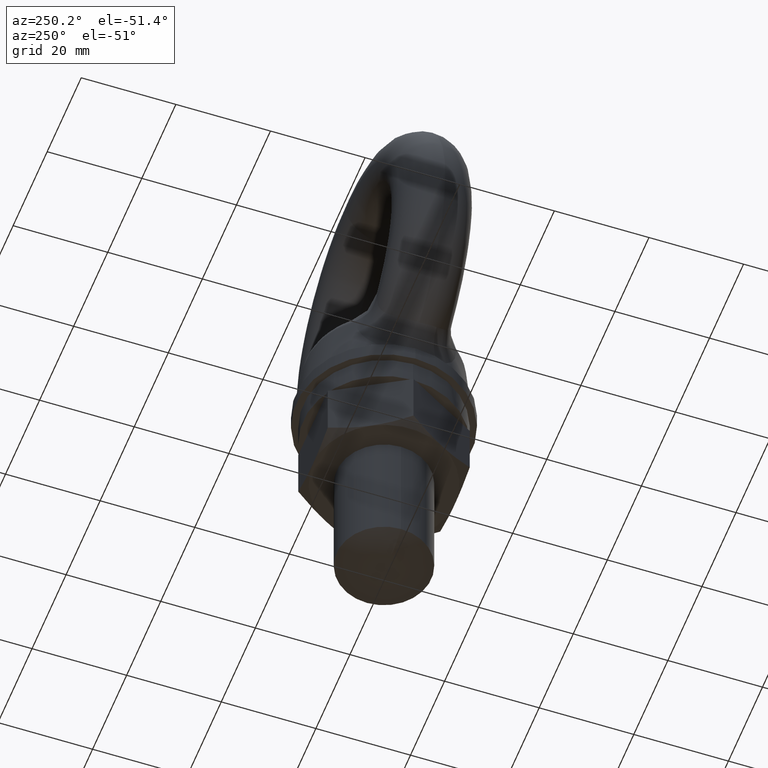
[diagram: clean part render]
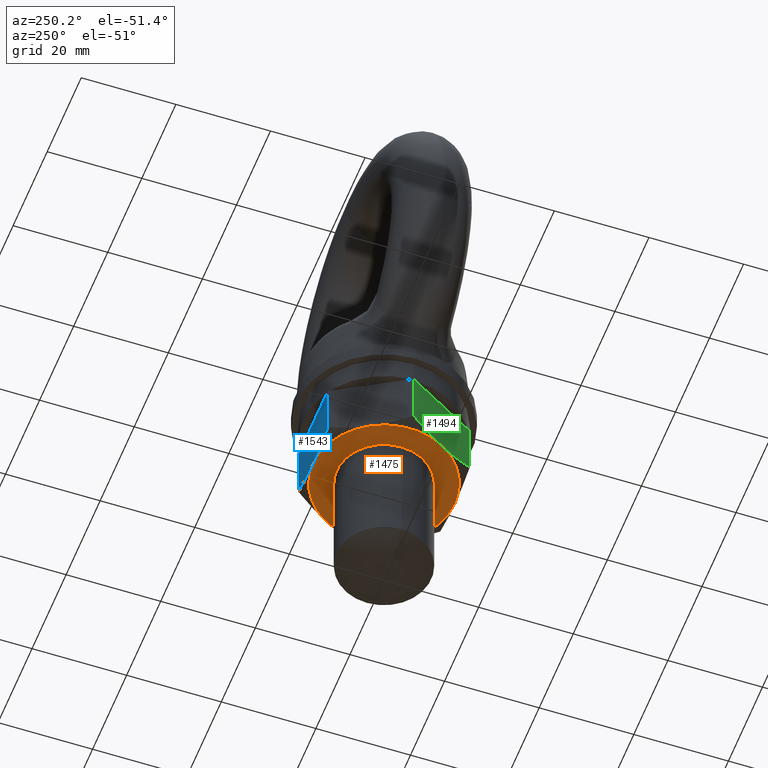
[diagram: same view with three faces highlighted in distinct colors, each labeled with its STEP entity id]
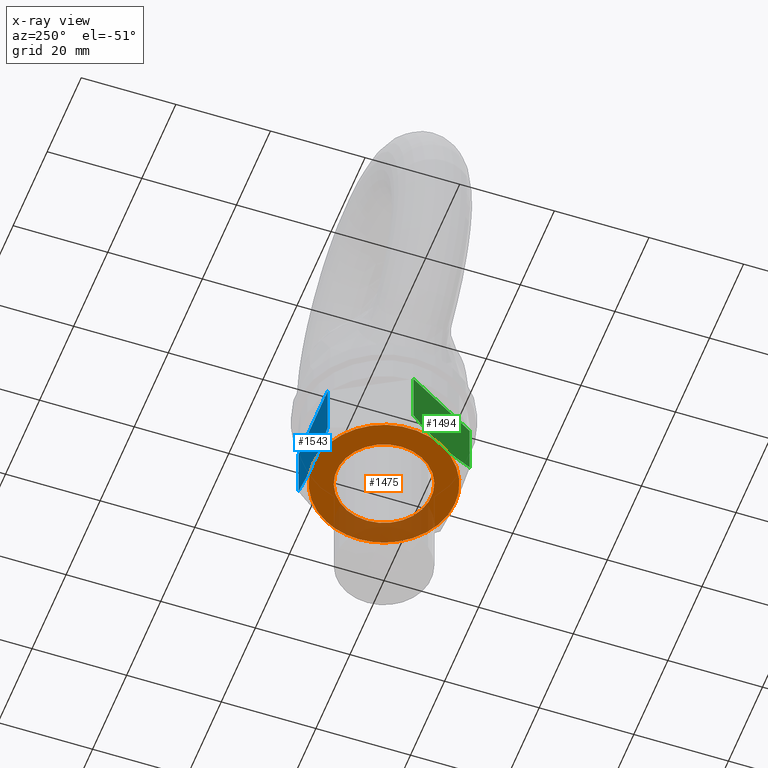
[diagram: x-ray of the same camera — body ghosted, the three highlighted faces saturated]
A machine part, auxiliary view with three faces highlighted in distinct colors.
The next image is the same camera in x-ray (body ghosted, the three faces saturated) — at least one of them is partly hidden behind the body in this view.
Their STEP definitions:

[orange] entity #1475 — the highlighted planar face has unit normal (0, 0, 1).
#1451 = EDGE_CURVE ( 'NONE', #1452, #1459, #2021, .T. ) ;
#1452 = VERTEX_POINT ( 'NONE', #2338 ) ;
#1459 = VERTEX_POINT ( 'NONE', #2146 ) ;
#1475 = ADVANCED_FACE ( 'NONE', ( #2124, #2123 ), #2219, .F. ) ;
#1476 = EDGE_LOOP ( 'NONE', ( #1597, #1599 ) ) ;
#1484 = VERTEX_POINT ( 'NONE', #2191 ) ;
#1492 = VERTEX_POINT ( 'NONE', #2272 ) ;
#1496 = VERTEX_POINT ( 'NONE', #2261 ) ;
#1499 = EDGE_CURVE ( 'NONE', #1496, #1492, #2260, .T. ) ;
#1514 = VERTEX_POINT ( 'NONE', #2290 ) ;
#1520 = VERTEX_POINT ( 'NONE', #2320 ) ;
#1535 = VERTEX_POINT ( 'NONE', #2164 ) ;
#1547 = VERTEX_POINT ( 'NONE', #2340 ) ;
#1597 = ORIENTED_EDGE ( 'NONE', *, *, #1598, .F. ) ;
#1598 = EDGE_CURVE ( 'NONE', #1492, #1496, #3172, .T. ) ;
#1599 = ORIENTED_EDGE ( 'NONE', *, *, #1499, .F. ) ;
#1600 = EDGE_LOOP ( 'NONE', ( #1601, #1603, #1605, #1667, #1669, #1671, #1673 ) ) ;
#1601 = ORIENTED_EDGE ( 'NONE', *, *, #1602, .F. ) ;
#1602 = EDGE_CURVE ( 'NONE', #1520, #1547, #3222, .T. ) ;
#1603 = ORIENTED_EDGE ( 'NONE', *, *, #1604, .F. ) ;
#1604 = EDGE_CURVE ( 'NONE', #1459, #1520, #3215, .T. ) ;
#1605 = ORIENTED_EDGE ( 'NONE', *, *, #1451, .F. ) ;
#1667 = ORIENTED_EDGE ( 'NONE', *, *, #1668, .F. ) ;
#1668 = EDGE_CURVE ( 'NONE', #1514, #1452, #3314, .T. ) ;
#1669 = ORIENTED_EDGE ( 'NONE', *, *, #1670, .F. ) ;
#1670 = EDGE_CURVE ( 'NONE', #1484, #1514, #3309, .T. ) ;
#1671 = ORIENTED_EDGE ( 'NONE', *, *, #1672, .F. ) ;
#1672 = EDGE_CURVE ( 'NONE', #1535, #1484, #3304, .T. ) ;
#1673 = ORIENTED_EDGE ( 'NONE', *, *, #1674, .T. ) ;
#1674 = EDGE_CURVE ( 'NONE', #1535, #1547, #3299, .T. ) ;
#2014 = DIRECTION ( 'NONE',  ( 1.000000000000000000, 0.0000000000000000000, 0.0000000000000000000 ) ) ;
#2015 = DIRECTION ( 'NONE',  ( 0.0000000000000000000, 0.0000000000000000000, 1.000000000000000000 ) ) ;
#2016 = CARTESIAN_POINT ( 'NONE',  ( 0.0000000000000000000, 0.0000000000000000000, -56.30000300000009600 ) ) ;
#2017 = AXIS2_PLACEMENT_3D ( 'NONE', #2016, #2015, #2014 ) ;
#2021 = CIRCLE ( 'NONE', #2017, 15.00000000000000000 ) ;
#2123 = FACE_OUTER_BOUND ( 'NONE', #1600, .T. ) ;
#2124 = FACE_BOUND ( 'NONE', #1476, .T. ) ;
#2146 = CARTESIAN_POINT ( 'NONE',  ( 15.00000000000000000, 0.0000000000000000000, -56.30000300000009600 ) ) ;
#2164 = CARTESIAN_POINT ( 'NONE',  ( -12.99038102838325900, 7.500000816864069700, -56.30000300000009600 ) ) ;
#2191 = CARTESIAN_POINT ( 'NONE',  ( -12.99038069595821900, -7.500000624938359700, -56.30000300000009600 ) ) ;
#2207 = DIRECTION ( 'NONE',  ( 1.000000000000000000, 0.0000000000000000000, 0.0000000000000000000 ) ) ;
#2208 = DIRECTION ( 'NONE',  ( 0.0000000000000000000, 0.0000000000000000000, 1.000000000000000000 ) ) ;
#2209 = CARTESIAN_POINT ( 'NONE',  ( 0.0000000000000000000, 0.0000000000000000000, -56.30000300000009600 ) ) ;
#2210 = AXIS2_PLACEMENT_3D ( 'NONE', #2209, #2208, #2207 ) ;
#2219 = PLANE ( 'NONE',  #2210 ) ;
#2256 = DIRECTION ( 'NONE',  ( 1.000000000000000000, 0.0000000000000000000, 0.0000000000000000000 ) ) ;
#2257 = DIRECTION ( 'NONE',  ( 0.0000000000000000000, 0.0000000000000000000, -1.000000000000000000 ) ) ;
#2258 = CARTESIAN_POINT ( 'NONE',  ( 0.0000000000000000000, 0.0000000000000000000, -56.30000300000000400 ) ) ;
#2259 = AXIS2_PLACEMENT_3D ( 'NONE', #2258, #2257, #2256 ) ;
#2260 = CIRCLE ( 'NONE', #2259, 10.00000000000000000 ) ;
#2261 = CARTESIAN_POINT ( 'NONE',  ( 10.00000000000000000, 1.224606353822377300E-015, -56.30000300000000400 ) ) ;
#2272 = CARTESIAN_POINT ( 'NONE',  ( -10.00000000000000000, 0.0000000000000000000, -56.30000300000000400 ) ) ;
#2290 = CARTESIAN_POINT ( 'NONE',  ( 0.0000000000000000000, -15.00000000000000000, -56.30000300000009600 ) ) ;
#2320 = CARTESIAN_POINT ( 'NONE',  ( 12.99038069595821900, 7.500000624938359700, -56.30000300000009600 ) ) ;
#2338 = CARTESIAN_POINT ( 'NONE',  ( 12.99038069595821900, -7.500000624938359700, -56.30000300000009600 ) ) ;
#2340 = CARTESIAN_POINT ( 'NONE',  ( 0.0000000000000000000, 15.00000000000000000, -56.30000300000009600 ) ) ;
#3170 = CARTESIAN_POINT ( 'NONE',  ( 0.0000000000000000000, 0.0000000000000000000, -56.30000300000000400 ) ) ;
#3171 = AXIS2_PLACEMENT_3D ( 'NONE', #3170, #3217, #3216 ) ;
#3172 = CIRCLE ( 'NONE', #3171, 10.00000000000000000 ) ;
#3183 = DIRECTION ( 'NONE',  ( 1.000000000000000000, 0.0000000000000000000, 0.0000000000000000000 ) ) ;
#3184 = DIRECTION ( 'NONE',  ( 0.0000000000000000000, 0.0000000000000000000, 1.000000000000000000 ) ) ;
#3185 = CARTESIAN_POINT ( 'NONE',  ( 0.0000000000000000000, 0.0000000000000000000, -56.30000300000009600 ) ) ;
#3186 = AXIS2_PLACEMENT_3D ( 'NONE', #3185, #3184, #3183 ) ;
#3215 = CIRCLE ( 'NONE', #3186, 15.00000000000000000 ) ;
#3216 = DIRECTION ( 'NONE',  ( 1.000000000000000000, 0.0000000000000000000, 0.0000000000000000000 ) ) ;
#3217 = DIRECTION ( 'NONE',  ( 0.0000000000000000000, 0.0000000000000000000, -1.000000000000000000 ) ) ;
#3218 = DIRECTION ( 'NONE',  ( 1.000000000000000000, 0.0000000000000000000, 0.0000000000000000000 ) ) ;
#3219 = DIRECTION ( 'NONE',  ( 0.0000000000000000000, 0.0000000000000000000, 1.000000000000000000 ) ) ;
#3220 = CARTESIAN_POINT ( 'NONE',  ( 0.0000000000000000000, 0.0000000000000000000, -56.30000300000009600 ) ) ;
#3221 = AXIS2_PLACEMENT_3D ( 'NONE', #3220, #3219, #3218 ) ;
#3222 = CIRCLE ( 'NONE', #3221, 15.00000000000000000 ) ;
#3295 = DIRECTION ( 'NONE',  ( -1.000000000000000000, 0.0000000000000000000, 0.0000000000000000000 ) ) ;
#3296 = DIRECTION ( 'NONE',  ( 0.0000000000000000000, 0.0000000000000000000, -1.000000000000000000 ) ) ;
#3297 = CARTESIAN_POINT ( 'NONE',  ( 0.0000000000000000000, 0.0000000000000000000, -56.30000300000009600 ) ) ;
#3298 = AXIS2_PLACEMENT_3D ( 'NONE', #3297, #3296, #3295 ) ;
#3299 = CIRCLE ( 'NONE', #3298, 15.00000000000000000 ) ;
#3300 = DIRECTION ( 'NONE',  ( 1.000000000000000000, 0.0000000000000000000, 0.0000000000000000000 ) ) ;
#3301 = DIRECTION ( 'NONE',  ( 0.0000000000000000000, 0.0000000000000000000, 1.000000000000000000 ) ) ;
#3302 = CARTESIAN_POINT ( 'NONE',  ( 0.0000000000000000000, 0.0000000000000000000, -56.30000300000009600 ) ) ;
#3303 = AXIS2_PLACEMENT_3D ( 'NONE', #3302, #3301, #3300 ) ;
#3304 = CIRCLE ( 'NONE', #3303, 15.00000000000000000 ) ;
#3305 = DIRECTION ( 'NONE',  ( 1.000000000000000000, 0.0000000000000000000, 0.0000000000000000000 ) ) ;
#3306 = DIRECTION ( 'NONE',  ( 0.0000000000000000000, 0.0000000000000000000, 1.000000000000000000 ) ) ;
#3307 = CARTESIAN_POINT ( 'NONE',  ( 0.0000000000000000000, 0.0000000000000000000, -56.30000300000009600 ) ) ;
#3308 = AXIS2_PLACEMENT_3D ( 'NONE', #3307, #3306, #3305 ) ;
#3309 = CIRCLE ( 'NONE', #3308, 15.00000000000000000 ) ;
#3310 = DIRECTION ( 'NONE',  ( 1.000000000000000000, 0.0000000000000000000, 0.0000000000000000000 ) ) ;
#3311 = DIRECTION ( 'NONE',  ( 0.0000000000000000000, 0.0000000000000000000, 1.000000000000000000 ) ) ;
#3312 = CARTESIAN_POINT ( 'NONE',  ( 0.0000000000000000000, 0.0000000000000000000, -56.30000300000009600 ) ) ;
#3313 = AXIS2_PLACEMENT_3D ( 'NONE', #3312, #3311, #3310 ) ;
#3314 = CIRCLE ( 'NONE', #3313, 15.00000000000000000 ) ;

[blue] entity #1543 — the highlighted planar face has unit normal (0, -1, 0).
#1442 = EDGE_CURVE ( 'NONE', #1443, #1546, #1844, .T. ) ;
#1443 = VERTEX_POINT ( 'NONE', #1840 ) ;
#1444 = ORIENTED_EDGE ( 'NONE', *, *, #1515, .F. ) ;
#1469 = VERTEX_POINT ( 'NONE', #2129 ) ;
#1515 = EDGE_CURVE ( 'NONE', #1523, #1443, #2289, .T. ) ;
#1522 = EDGE_CURVE ( 'NONE', #1523, #1469, #2319, .T. ) ;
#1523 = VERTEX_POINT ( 'NONE', #2188 ) ;
#1527 = EDGE_LOOP ( 'NONE', ( #1544, #1548, #1444, #1530, #1531 ) ) ;
#1530 = ORIENTED_EDGE ( 'NONE', *, *, #1522, .T. ) ;
#1531 = ORIENTED_EDGE ( 'NONE', *, *, #1532, .F. ) ;
#1532 = EDGE_CURVE ( 'NONE', #1547, #1469, #2177, .T. ) ;
#1543 = ADVANCED_FACE ( 'NONE', ( #2235 ), #2232, .F. ) ;
#1544 = ORIENTED_EDGE ( 'NONE', *, *, #1545, .F. ) ;
#1545 = EDGE_CURVE ( 'NONE', #1546, #1547, #2591, .T. ) ;
#1546 = VERTEX_POINT ( 'NONE', #2563 ) ;
#1547 = VERTEX_POINT ( 'NONE', #2340 ) ;
#1548 = ORIENTED_EDGE ( 'NONE', *, *, #1442, .F. ) ;
#1840 = CARTESIAN_POINT ( 'NONE',  ( -8.660253999999998300, 15.00000000000000000, -43.29999900000014900 ) ) ;
#1841 = DIRECTION ( 'NONE',  ( 0.0000000000000000000, 0.0000000000000000000, -1.000000000000000000 ) ) ;
#1842 = VECTOR ( 'NONE', #1841, 1000.000000000000000 ) ;
#1843 = CARTESIAN_POINT ( 'NONE',  ( -8.660253999999998300, 15.00000000000000000, 943.6999969999999400 ) ) ;
#1844 = LINE ( 'NONE', #1843, #1842 ) ;
#2129 = CARTESIAN_POINT ( 'NONE',  ( 8.660253999999998300, 15.00000000000000000, -54.96025704876919300 ) ) ;
#2168 = CARTESIAN_POINT ( 'NONE',  ( 8.660253999999998300, 15.00000000000000000, -54.96025704876919300 ) ) ;
#2169 = CARTESIAN_POINT ( 'NONE',  ( 7.259722152322110500, 15.00000000000000200, -55.36455576707688700 ) ) ;
#2170 = CARTESIAN_POINT ( 'NONE',  ( 5.841206664520824700, 15.00000000000000000, -55.70111161903209100 ) ) ;
#2171 = CARTESIAN_POINT ( 'NONE',  ( 3.672874707161987400, 15.00000000000000000, -56.05316407389835800 ) ) ;
#2172 = CARTESIAN_POINT ( 'NONE',  ( 2.943301964262826900, 14.99999999999999800, -56.14491709987432000 ) ) ;
#2173 = CARTESIAN_POINT ( 'NONE',  ( 1.468331681756600600, 15.00000000000000400, -56.26881246783327800 ) ) ;
#2174 = CARTESIAN_POINT ( 'NONE',  ( 0.7327011086299587400, 15.00000000000000000, -56.30000300000008900 ) ) ;
#2175 = CARTESIAN_POINT ( 'NONE',  ( 0.0000000000000000000, 15.00000000000000000, -56.30000300000009600 ) ) ;
#2177 = B_SPLINE_CURVE_WITH_KNOTS ( 'NONE', 3,
 ( #2175, #2174, #2173, #2172, #2171, #2170, #2169, #2168 ),
 .UNSPECIFIED., .F., .F.,
 ( 4, 2, 2, 4 ),
 ( 0.02454570066717594000, 0.02673827994360973900, 0.02893085922004353500, 0.03331601777291113400 ),
 .UNSPECIFIED. ) ;
#2188 = CARTESIAN_POINT ( 'NONE',  ( 8.660253999999998300, 15.00000000000000000, -43.29999900000014900 ) ) ;
#2189 = DIRECTION ( 'NONE',  ( 0.0000000000000000000, 0.0000000000000000000, -1.000000000000000000 ) ) ;
#2220 = DIRECTION ( 'NONE',  ( 0.0000000000000000000, 0.0000000000000000000, -1.000000000000000000 ) ) ;
#2221 = DIRECTION ( 'NONE',  ( 0.0000000000000000000, -1.000000000000000000, 0.0000000000000000000 ) ) ;
#2222 = CARTESIAN_POINT ( 'NONE',  ( 8.660253999999998300, 15.00000000000000000, 943.6999969999999400 ) ) ;
#2232 = PLANE ( 'NONE',  #2234 ) ;
#2234 = AXIS2_PLACEMENT_3D ( 'NONE', #2222, #2221, #2220 ) ;
#2235 = FACE_OUTER_BOUND ( 'NONE', #1527, .T. ) ;
#2288 = CARTESIAN_POINT ( 'NONE',  ( 8.660253999999998300, 15.00000000000000000, -43.29999900000014900 ) ) ;
#2289 = LINE ( 'NONE', #2288, #2328 ) ;
#2317 = VECTOR ( 'NONE', #2189, 1000.000000000000000 ) ;
#2318 = CARTESIAN_POINT ( 'NONE',  ( 8.660253999999998300, 15.00000000000000000, 943.6999969999999400 ) ) ;
#2319 = LINE ( 'NONE', #2318, #2317 ) ;
#2327 = DIRECTION ( 'NONE',  ( -1.000000000000000000, 0.0000000000000000000, 0.0000000000000000000 ) ) ;
#2328 = VECTOR ( 'NONE', #2327, 1000.000000000000000 ) ;
#2340 = CARTESIAN_POINT ( 'NONE',  ( 0.0000000000000000000, 15.00000000000000000, -56.30000300000009600 ) ) ;
#2517 = CARTESIAN_POINT ( 'NONE',  ( -2.918366813997372900, 15.00000000000000000, -56.17406471936620700 ) ) ;
#2518 = CARTESIAN_POINT ( 'NONE',  ( -5.808530979648735700, 15.00000000000000400, -55.70798355773237600 ) ) ;
#2519 = CARTESIAN_POINT ( 'NONE',  ( -7.250773704282162100, 15.00000000000000000, -55.36713896151078300 ) ) ;
#2520 = CARTESIAN_POINT ( 'NONE',  ( -8.660253999999998300, 15.00000000000000000, -54.96025704876919300 ) ) ;
#2561 = CARTESIAN_POINT ( 'NONE',  ( 0.0000000000000000000, 15.00000000000000000, -56.30000300000009600 ) ) ;
#2562 = CARTESIAN_POINT ( 'NONE',  ( -1.464404437983632300, 15.00000000000000200, -56.30000300000009600 ) ) ;
#2563 = CARTESIAN_POINT ( 'NONE',  ( -8.660253999999998300, 15.00000000000000000, -54.96025704876919300 ) ) ;
#2591 = B_SPLINE_CURVE_WITH_KNOTS ( 'NONE', 3,
 ( #2520, #2519, #2518, #2517, #2562, #2561 ),
 .UNSPECIFIED., .F., .F.,
 ( 4, 2, 4 ),
 ( 0.01578135519199479200, 0.02016352792958536800, 0.02454570066717594000 ),
 .UNSPECIFIED. ) ;

[green] entity #1494 — the highlighted planar face has unit normal (0.866, 0.5, 0).
#1458 = ORIENTED_EDGE ( 'NONE', *, *, #1505, .F. ) ;
#1477 = VERTEX_POINT ( 'NONE', #2206 ) ;
#1478 = EDGE_CURVE ( 'NONE', #1477, #1481, #2205, .T. ) ;
#1479 = EDGE_CURVE ( 'NONE', #1477, #1485, #2200, .T. ) ;
#1480 = ORIENTED_EDGE ( 'NONE', *, *, #1478, .T. ) ;
#1481 = VERTEX_POINT ( 'NONE', #2196 ) ;
#1482 = EDGE_CURVE ( 'NONE', #1485, #1483, #2201, .T. ) ;
#1483 = VERTEX_POINT ( 'NONE', #2192 ) ;
#1484 = VERTEX_POINT ( 'NONE', #2191 ) ;
#1485 = VERTEX_POINT ( 'NONE', #2190 ) ;
#1486 = ORIENTED_EDGE ( 'NONE', *, *, #1479, .F. ) ;
#1487 = EDGE_CURVE ( 'NONE', #1483, #1484, #2283, .T. ) ;
#1488 = ORIENTED_EDGE ( 'NONE', *, *, #1482, .F. ) ;
#1489 = ORIENTED_EDGE ( 'NONE', *, *, #1487, .F. ) ;
#1494 = ADVANCED_FACE ( 'NONE', ( #2267 ), #2266, .F. ) ;
#1498 = EDGE_LOOP ( 'NONE', ( #1489, #1488, #1486, #1480, #1458 ) ) ;
#1505 = EDGE_CURVE ( 'NONE', #1484, #1481, #2305, .T. ) ;
#2190 = CARTESIAN_POINT ( 'NONE',  ( -8.660253999999998300, -15.00000000000000000, -43.29999900000014900 ) ) ;
#2191 = CARTESIAN_POINT ( 'NONE',  ( -12.99038069595821900, -7.500000624938359700, -56.30000300000009600 ) ) ;
#2192 = CARTESIAN_POINT ( 'NONE',  ( -8.660253999999998300, -15.00000000000000000, -54.96025704876919300 ) ) ;
#2193 = DIRECTION ( 'NONE',  ( 0.0000000000000000000, 0.0000000000000000000, -1.000000000000000000 ) ) ;
#2194 = VECTOR ( 'NONE', #2193, 1000.000000000000000 ) ;
#2195 = CARTESIAN_POINT ( 'NONE',  ( -8.660253999999998300, -15.00000000000000000, 943.6999969999999400 ) ) ;
#2196 = CARTESIAN_POINT ( 'NONE',  ( -17.32050900000000100, 1.096162151108375900E-015, -54.96025650419309700 ) ) ;
#2197 = DIRECTION ( 'NONE',  ( 0.5000000416625576300, -0.8660253797305483800, 0.0000000000000000000 ) ) ;
#2198 = VECTOR ( 'NONE', #2197, 1000.000000000000200 ) ;
#2199 = CARTESIAN_POINT ( 'NONE',  ( -17.32050900000000100, 0.0000000000000000000, -43.29999900000014900 ) ) ;
#2200 = LINE ( 'NONE', #2199, #2198 ) ;
#2201 = LINE ( 'NONE', #2195, #2194 ) ;
#2202 = DIRECTION ( 'NONE',  ( 0.0000000000000000000, 0.0000000000000000000, -1.000000000000000000 ) ) ;
#2203 = VECTOR ( 'NONE', #2202, 1000.000000000000000 ) ;
#2204 = CARTESIAN_POINT ( 'NONE',  ( -17.32050900000000100, 0.0000000000000000000, 943.6999969999999400 ) ) ;
#2205 = LINE ( 'NONE', #2204, #2203 ) ;
#2206 = CARTESIAN_POINT ( 'NONE',  ( -17.32050900000000100, 0.0000000000000000000, -43.29999900000014900 ) ) ;
#2262 = DIRECTION ( 'NONE',  ( -0.5000000416625577400, 0.8660253797305484900, 0.0000000000000000000 ) ) ;
#2263 = DIRECTION ( 'NONE',  ( 0.8660253797305484900, 0.5000000416625577400, 0.0000000000000000000 ) ) ;
#2264 = CARTESIAN_POINT ( 'NONE',  ( -17.32050900000000100, 0.0000000000000000000, 943.6999969999999400 ) ) ;
#2265 = AXIS2_PLACEMENT_3D ( 'NONE', #2264, #2263, #2262 ) ;
#2266 = PLANE ( 'NONE',  #2265 ) ;
#2267 = FACE_OUTER_BOUND ( 'NONE', #1498, .T. ) ;
#2277 = CARTESIAN_POINT ( 'NONE',  ( -12.99038069595821900, -7.500000624938359700, -56.30000300000009600 ) ) ;
#2278 = CARTESIAN_POINT ( 'NONE',  ( -12.25265591879470700, -8.777778046729524800, -56.30000278019127800 ) ) ;
#2279 = CARTESIAN_POINT ( 'NONE',  ( -11.52410142196416100, -10.03967131112626500, -56.17231792276339100 ) ) ;
#2280 = CARTESIAN_POINT ( 'NONE',  ( -10.08213228077249800, -12.53723484913699300, -55.70615241626605800 ) ) ;
#2281 = CARTESIAN_POINT ( 'NONE',  ( -9.368606131570551600, -13.77309825477910900, -55.36922427579862200 ) ) ;
#2282 = CARTESIAN_POINT ( 'NONE',  ( -8.660253999999998300, -15.00000000000000000, -54.96025704876919300 ) ) ;
#2283 = B_SPLINE_CURVE_WITH_KNOTS ( 'NONE', 3,
 ( #2282, #2281, #2280, #2279, #2278, #2277 ),
 .UNSPECIFIED., .F., .F.,
 ( 4, 2, 4 ),
 ( 2.380728901306220500E-007, 0.004381616994656343900, 0.008762995916422558500 ),
 .UNSPECIFIED. ) ;
#2294 = CARTESIAN_POINT ( 'NONE',  ( -17.32050900000000100, 1.096162151108375900E-015, -54.96025650419309700 ) ) ;
#2295 = CARTESIAN_POINT ( 'NONE',  ( -16.61392576417441800, -1.223837928257742700, -55.36820252560203000 ) ) ;
#2296 = CARTESIAN_POINT ( 'NONE',  ( -15.90144742230583600, -2.457886478563569500, -55.70496989930615700 ) ) ;
#2297 = CARTESIAN_POINT ( 'NONE',  ( -14.81988494306981100, -4.331207436034268300, -56.05502835697175400 ) ) ;
#2298 = CARTESIAN_POINT ( 'NONE',  ( -14.45721702314277700, -4.959366629834631700, -56.14579008818820000 ) ) ;
#2299 = CARTESIAN_POINT ( 'NONE',  ( -13.72699660571175800, -6.224145353032194600, -56.26833621857643700 ) ) ;
#2300 = CARTESIAN_POINT ( 'NONE',  ( -13.35786436503229000, -6.863501077568260600, -56.30000277748286700 ) ) ;
#2301 = CARTESIAN_POINT ( 'NONE',  ( -12.99038069595821900, -7.500000624938359700, -56.30000300000009600 ) ) ;
#2305 = B_SPLINE_CURVE_WITH_KNOTS ( 'NONE', 3,
 ( #2301, #2300, #2299, #2298, #2297, #2296, #2295, #2294 ),
 .UNSPECIFIED., .F., .F.,
 ( 4, 2, 2, 4 ),
 ( 0.008762995916422558500, 0.01094549400397555600, 0.01312799209152855400, 0.01749298826663455600 ),
 .UNSPECIFIED. ) ;